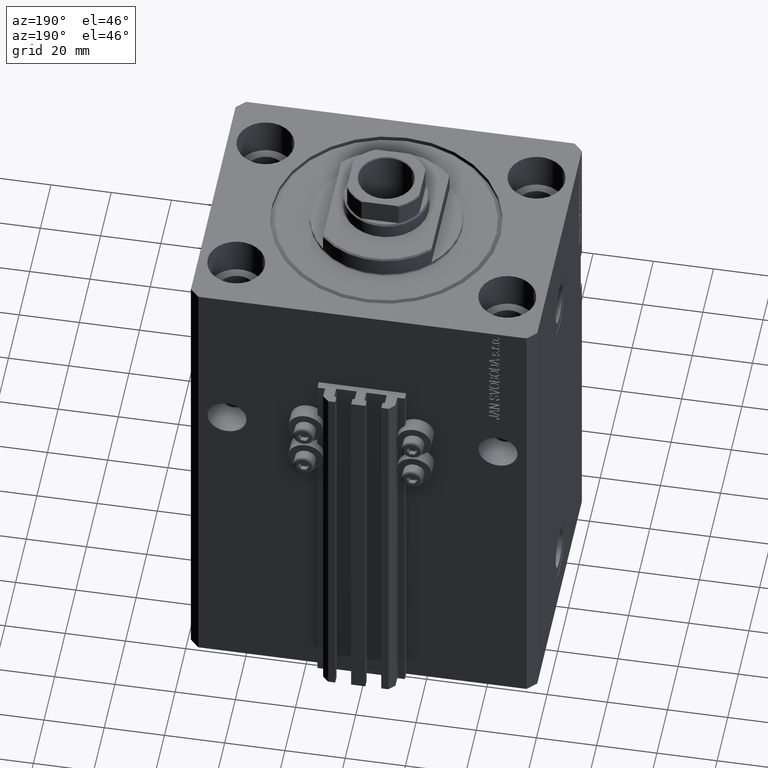
[diagram: clean part render]
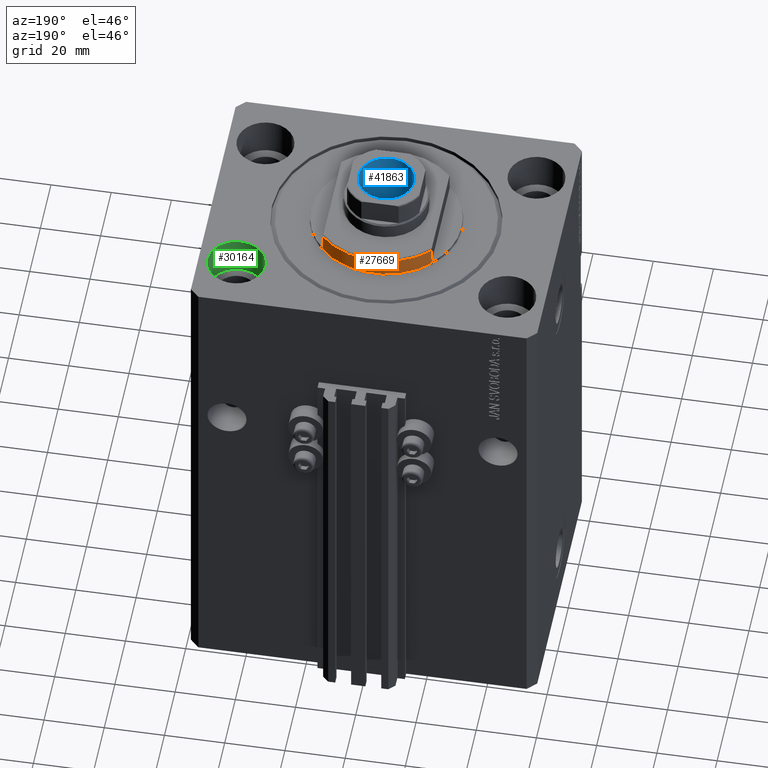
[diagram: same view with three faces highlighted in distinct colors, each labeled with its STEP entity id]
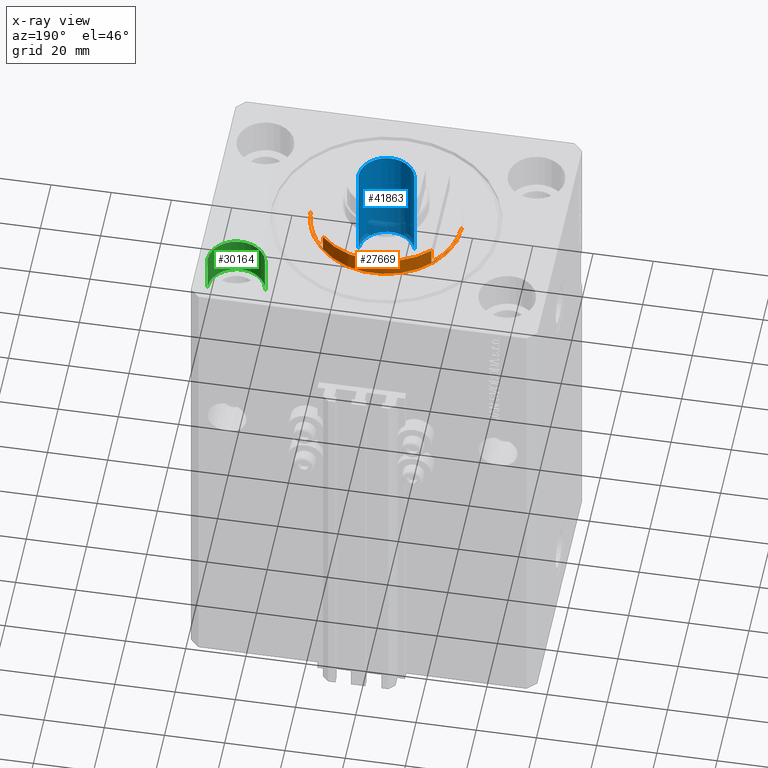
[diagram: x-ray of the same camera — body ghosted, the three highlighted faces saturated]
A machine part, auxiliary view with three faces highlighted in distinct colors.
The next image is the same camera in x-ray (body ghosted, the three faces saturated) — at least one of them is partly hidden behind the body in this view.
Their STEP definitions:

[orange] entity #27669 — the highlighted cylindrical surface (partial cylindrical patch) has radius 25 mm, axis along (0, 0, -1).
#2133 = DIRECTION ( 'NONE',  ( 0.000000000000000000, 0.000000000000000000, 1.000000000000000000 ) ) ;
#2218 = VERTEX_POINT ( 'NONE', #41506 ) ;
#2502 = LINE ( 'NONE', #2747, #20723 ) ;
#2574 = DIRECTION ( 'NONE',  ( -1.000000000000000000, 0.000000000000000000, 0.000000000000000000 ) ) ;
#2747 = CARTESIAN_POINT ( 'NONE',  ( 18.00000000000000000, 17.34935157289747920, -7.000000000000000000 ) ) ;
#2771 = ORIENTED_EDGE ( 'NONE', *, *, #3198, .T. ) ;
#3198 = EDGE_CURVE ( 'NONE', #12098, #40082, #40776, .T. ) ;
#5124 = CARTESIAN_POINT ( 'NONE',  ( 0.000000000000000000, 0.000000000000000000, -6.499999999999971578 ) ) ;
#5799 = AXIS2_PLACEMENT_3D ( 'NONE', #37212, #21775, #6624 ) ;
#6549 = CARTESIAN_POINT ( 'NONE',  ( 25.00000000000000000, 0.000000000000000000, -7.000000000000000000 ) ) ;
#6624 = DIRECTION ( 'NONE',  ( -1.000000000000000000, 0.000000000000000000, 0.000000000000000000 ) ) ;
#7531 = EDGE_CURVE ( 'NONE', #7735, #36211, #2502, .T. ) ;
#7546 = VERTEX_POINT ( 'NONE', #32585 ) ;
#7735 = VERTEX_POINT ( 'NONE', #12409 ) ;
#9516 = CARTESIAN_POINT ( 'NONE',  ( -18.00000000000000000, 17.34935157289747920, -1.000000000000000000 ) ) ;
#9783 = DIRECTION ( 'NONE',  ( 1.000000000000000000, 0.000000000000000000, 0.000000000000000000 ) ) ;
#11209 = VERTEX_POINT ( 'NONE', #42398 ) ;
#11849 = EDGE_CURVE ( 'NONE', #36211, #11209, #47102, .T. ) ;
#12098 = VERTEX_POINT ( 'NONE', #20245 ) ;
#12409 = CARTESIAN_POINT ( 'NONE',  ( 18.00000000000000000, 17.34935157289748986, -6.499999999999978684 ) ) ;
#13263 = FACE_OUTER_BOUND ( 'NONE', #23309, .T. ) ;
#13988 = EDGE_CURVE ( 'NONE', #7546, #40082, #25713, .T. ) ;
#14125 = ORIENTED_EDGE ( 'NONE', *, *, #43415, .T. ) ;
#16430 = EDGE_CURVE ( 'NONE', #33506, #2218, #16922, .T. ) ;
#16922 = CIRCLE ( 'NONE', #44768, 25.00000000000000000 ) ;
#19432 = AXIS2_PLACEMENT_3D ( 'NONE', #5124, #2133, #36453 ) ;
#20245 = CARTESIAN_POINT ( 'NONE',  ( -18.00000000000000000, 17.34935157289748986, -6.499999999999978684 ) ) ;
#20723 = VECTOR ( 'NONE', #33084, 1000.000000000000000 ) ;
#21775 = DIRECTION ( 'NONE',  ( 0.000000000000000000, 0.000000000000000000, -1.000000000000000000 ) ) ;
#22496 = ORIENTED_EDGE ( 'NONE', *, *, #11849, .F. ) ;
#22548 = AXIS2_PLACEMENT_3D ( 'NONE', #37145, #33394, #2574 ) ;
#22617 = EDGE_CURVE ( 'NONE', #11209, #2218, #41374, .T. ) ;
#23309 = EDGE_LOOP ( 'NONE', ( #37682, #14125, #28978, #34951, #22496, #31592, #36909, #2771 ) ) ;
#25713 = CIRCLE ( 'NONE', #22548, 25.00000000000000000 ) ;
#27669 = ADVANCED_FACE ( 'NONE', ( #13263 ), #43882, .T. ) ;
#28258 = VECTOR ( 'NONE', #29424, 1000.000000000000000 ) ;
#28432 = CARTESIAN_POINT ( 'NONE',  ( 0.000000000000000000, 0.000000000000000000, -7.000000000000000000 ) ) ;
#28978 = ORIENTED_EDGE ( 'NONE', *, *, #16430, .T. ) ;
#29424 = DIRECTION ( 'NONE',  ( -0.000000000000000000, -0.000000000000000000, 1.000000000000000000 ) ) ;
#31333 = DIRECTION ( 'NONE',  ( 1.000000000000000000, 0.000000000000000000, 0.000000000000000000 ) ) ;
#31592 = ORIENTED_EDGE ( 'NONE', *, *, #7531, .F. ) ;
#31715 = LINE ( 'NONE', #34735, #48928 ) ;
#32546 = CARTESIAN_POINT ( 'NONE',  ( -18.00000000000000000, 17.34935157289747920, -7.000000000000000000 ) ) ;
#32585 = CARTESIAN_POINT ( 'NONE',  ( -25.00000000000000000, 3.061616997868383043E-15, -1.000000000000000000 ) ) ;
#33084 = DIRECTION ( 'NONE',  ( -0.000000000000000000, -0.000000000000000000, 1.000000000000000000 ) ) ;
#33394 = DIRECTION ( 'NONE',  ( 0.000000000000000000, 0.000000000000000000, -1.000000000000000000 ) ) ;
#33506 = VERTEX_POINT ( 'NONE', #42995 ) ;
#34735 = CARTESIAN_POINT ( 'NONE',  ( -25.00000000000000000, 3.061616997868383043E-15, -7.000000000000000000 ) ) ;
#34951 = ORIENTED_EDGE ( 'NONE', *, *, #22617, .F. ) ;
#35418 = DIRECTION ( 'NONE',  ( -0.000000000000000000, -0.000000000000000000, 1.000000000000000000 ) ) ;
#35700 = VECTOR ( 'NONE', #47747, 1000.000000000000000 ) ;
#36211 = VERTEX_POINT ( 'NONE', #37869 ) ;
#36453 = DIRECTION ( 'NONE',  ( -1.000000000000000000, 0.000000000000000000, 0.000000000000000000 ) ) ;
#36909 = ORIENTED_EDGE ( 'NONE', *, *, #40617, .T. ) ;
#36928 = CIRCLE ( 'NONE', #19432, 25.00000000000000000 ) ;
#37145 = CARTESIAN_POINT ( 'NONE',  ( 0.000000000000000000, 0.000000000000000000, -1.000000000000000000 ) ) ;
#37212 = CARTESIAN_POINT ( 'NONE',  ( 0.000000000000000000, 0.000000000000000000, -1.000000000000000000 ) ) ;
#37682 = ORIENTED_EDGE ( 'NONE', *, *, #13988, .F. ) ;
#37869 = CARTESIAN_POINT ( 'NONE',  ( 18.00000000000000000, 17.34935157289747920, -1.000000000000000000 ) ) ;
#39309 = DIRECTION ( 'NONE',  ( -0.000000000000000000, -0.000000000000000000, -1.000000000000000000 ) ) ;
#40043 = CARTESIAN_POINT ( 'NONE',  ( 0.000000000000000000, 0.000000000000000000, -0.4999999999999995559 ) ) ;
#40082 = VERTEX_POINT ( 'NONE', #9516 ) ;
#40617 = EDGE_CURVE ( 'NONE', #7735, #12098, #36928, .T. ) ;
#40776 = LINE ( 'NONE', #32546, #35700 ) ;
#41374 = LINE ( 'NONE', #6549, #28258 ) ;
#41506 = CARTESIAN_POINT ( 'NONE',  ( 25.00000000000000000, 0.000000000000000000, -0.4999999999999995559 ) ) ;
#42398 = CARTESIAN_POINT ( 'NONE',  ( 25.00000000000000000, 0.000000000000000000, -1.000000000000000000 ) ) ;
#42995 = CARTESIAN_POINT ( 'NONE',  ( -25.00000000000000000, 3.061616997868383043E-15, -0.4999999999999995559 ) ) ;
#43181 = DIRECTION ( 'NONE',  ( -0.000000000000000000, -0.000000000000000000, 1.000000000000000000 ) ) ;
#43415 = EDGE_CURVE ( 'NONE', #7546, #33506, #31715, .T. ) ;
#43724 = AXIS2_PLACEMENT_3D ( 'NONE', #28432, #35418, #9783 ) ;
#43882 = CYLINDRICAL_SURFACE ( 'NONE', #43724, 25.00000000000000000 ) ;
#44768 = AXIS2_PLACEMENT_3D ( 'NONE', #40043, #39309, #31333 ) ;
#47102 = CIRCLE ( 'NONE', #5799, 25.00000000000000000 ) ;
#47747 = DIRECTION ( 'NONE',  ( -0.000000000000000000, -0.000000000000000000, 1.000000000000000000 ) ) ;
#48928 = VECTOR ( 'NONE', #43181, 1000.000000000000000 ) ;

[blue] entity #41863 — the highlighted cylindrical surface (edge-blend (fillet) strip) has radius 9.25 mm, axis along (0, 0, 1).
#465 = VECTOR ( 'NONE', #25358, 1000.000000000000000 ) ;
#2195 = AXIS2_PLACEMENT_3D ( 'NONE', #15902, #15668, #45553 ) ;
#2974 = CARTESIAN_POINT ( 'NONE',  ( 9.249999999999996447, 0.000000000000000000, 167.0000000000000000 ) ) ;
#5426 = CARTESIAN_POINT ( 'NONE',  ( -9.249999999999994671, 1.132798289211300909E-15, 132.0000000000000000 ) ) ;
#8384 = ORIENTED_EDGE ( 'NONE', *, *, #29652, .F. ) ;
#9651 = CARTESIAN_POINT ( 'NONE',  ( 9.249999999999994671, 0.000000000000000000, 132.0000000000000000 ) ) ;
#9935 = AXIS2_PLACEMENT_3D ( 'NONE', #10521, #49075, #17717 ) ;
#10521 = CARTESIAN_POINT ( 'NONE',  ( 0.000000000000000000, 0.000000000000000000, 167.0000000000000000 ) ) ;
#10522 = DIRECTION ( 'NONE',  ( -0.000000000000000000, -0.000000000000000000, 1.000000000000000000 ) ) ;
#11334 = ORIENTED_EDGE ( 'NONE', *, *, #46410, .F. ) ;
#11522 = ORIENTED_EDGE ( 'NONE', *, *, #23833, .T. ) ;
#13011 = CARTESIAN_POINT ( 'NONE',  ( -9.249999999999996447, 1.132798289211301304E-15, 167.0000000000000000 ) ) ;
#13930 = EDGE_CURVE ( 'NONE', #19007, #32016, #47109, .T. ) ;
#14729 = FACE_OUTER_BOUND ( 'NONE', #22604, .T. ) ;
#15668 = DIRECTION ( 'NONE',  ( 0.000000000000000000, 0.000000000000000000, 1.000000000000000000 ) ) ;
#15902 = CARTESIAN_POINT ( 'NONE',  ( 0.000000000000000000, 0.000000000000000000, 166.6999999999999886 ) ) ;
#16072 = DIRECTION ( 'NONE',  ( -0.000000000000000000, -0.000000000000000000, 1.000000000000000000 ) ) ;
#17717 = DIRECTION ( 'NONE',  ( 1.000000000000000000, 0.000000000000000000, 0.000000000000000000 ) ) ;
#17931 = CARTESIAN_POINT ( 'NONE',  ( -9.249999999999996447, 1.132798289211301304E-15, 166.6999999999999886 ) ) ;
#18982 = VERTEX_POINT ( 'NONE', #9651 ) ;
#19007 = VERTEX_POINT ( 'NONE', #5426 ) ;
#21456 = CYLINDRICAL_SURFACE ( 'NONE', #9935, 9.249999999999996447 ) ;
#22473 = ORIENTED_EDGE ( 'NONE', *, *, #13930, .T. ) ;
#22604 = EDGE_LOOP ( 'NONE', ( #8384, #22473, #11522, #11334 ) ) ;
#23295 = CARTESIAN_POINT ( 'NONE',  ( 0.000000000000000000, 0.000000000000000000, 132.0000000000000000 ) ) ;
#23614 = CIRCLE ( 'NONE', #2195, 9.249999999999996447 ) ;
#23833 = EDGE_CURVE ( 'NONE', #32016, #31573, #23614, .T. ) ;
#25358 = DIRECTION ( 'NONE',  ( -0.000000000000000000, -0.000000000000000000, 1.000000000000000000 ) ) ;
#29652 = EDGE_CURVE ( 'NONE', #19007, #18982, #45397, .T. ) ;
#31573 = VERTEX_POINT ( 'NONE', #37527 ) ;
#32016 = VERTEX_POINT ( 'NONE', #17931 ) ;
#33557 = LINE ( 'NONE', #2974, #465 ) ;
#36652 = AXIS2_PLACEMENT_3D ( 'NONE', #23295, #16072, #38498 ) ;
#37527 = CARTESIAN_POINT ( 'NONE',  ( 9.249999999999996447, 0.000000000000000000, 166.6999999999999886 ) ) ;
#38498 = DIRECTION ( 'NONE',  ( 1.000000000000000000, 0.000000000000000000, 0.000000000000000000 ) ) ;
#41863 = ADVANCED_FACE ( 'NONE', ( #14729 ), #21456, .F. ) ;
#45397 = CIRCLE ( 'NONE', #36652, 9.249999999999994671 ) ;
#45553 = DIRECTION ( 'NONE',  ( 1.000000000000000000, 0.000000000000000000, 0.000000000000000000 ) ) ;
#46410 = EDGE_CURVE ( 'NONE', #18982, #31573, #33557, .T. ) ;
#47109 = LINE ( 'NONE', #13011, #47170 ) ;
#47170 = VECTOR ( 'NONE', #10522, 1000.000000000000000 ) ;
#49075 = DIRECTION ( 'NONE',  ( -0.000000000000000000, -0.000000000000000000, 1.000000000000000000 ) ) ;

[green] entity #30164 — the highlighted cylindrical surface (edge-blend (fillet) strip) has radius 9.5 mm, axis along (0, 0, 1).
#347 = ORIENTED_EDGE ( 'NONE', *, *, #6184, .F. ) ;
#1648 = ORIENTED_EDGE ( 'NONE', *, *, #13707, .F. ) ;
#3500 = ORIENTED_EDGE ( 'NONE', *, *, #6903, .T. ) ;
#4283 = EDGE_CURVE ( 'NONE', #31023, #21411, #28277, .T. ) ;
#4300 = FACE_OUTER_BOUND ( 'NONE', #5966, .T. ) ;
#5966 = EDGE_LOOP ( 'NONE', ( #347, #30416, #3500, #1648 ) ) ;
#6184 = EDGE_CURVE ( 'NONE', #31023, #17958, #17499, .T. ) ;
#6903 = EDGE_CURVE ( 'NONE', #21411, #8321, #12775, .T. ) ;
#8004 = AXIS2_PLACEMENT_3D ( 'NONE', #11540, #30440, #11781 ) ;
#8321 = VERTEX_POINT ( 'NONE', #46806 ) ;
#8799 = AXIS2_PLACEMENT_3D ( 'NONE', #13312, #47160, #36210 ) ;
#9124 = CARTESIAN_POINT ( 'NONE',  ( 35.50000000000000000, 27.50000000000001776, -13.00000000000000000 ) ) ;
#9849 = VECTOR ( 'NONE', #11414, 1000.000000000000000 ) ;
#11414 = DIRECTION ( 'NONE',  ( -0.000000000000000000, -0.000000000000000000, 1.000000000000000000 ) ) ;
#11540 = CARTESIAN_POINT ( 'NONE',  ( 45.00000000000000000, 27.50000000000001776, -13.00000000000000000 ) ) ;
#11756 = DIRECTION ( 'NONE',  ( 1.000000000000000000, 0.000000000000000000, 0.000000000000000000 ) ) ;
#11781 = DIRECTION ( 'NONE',  ( 1.000000000000000000, 0.000000000000000000, 0.000000000000000000 ) ) ;
#12775 = CIRCLE ( 'NONE', #8799, 9.500000000000001776 ) ;
#13312 = CARTESIAN_POINT ( 'NONE',  ( 45.00000000000000000, 27.50000000000001776, 0.000000000000000000 ) ) ;
#13342 = DIRECTION ( 'NONE',  ( -0.000000000000000000, -0.000000000000000000, 1.000000000000000000 ) ) ;
#13707 = EDGE_CURVE ( 'NONE', #17958, #8321, #49225, .T. ) ;
#14280 = VECTOR ( 'NONE', #13342, 1000.000000000000000 ) ;
#15379 = CARTESIAN_POINT ( 'NONE',  ( 54.50000000000000000, 27.50000000000001776, -13.00000000000000000 ) ) ;
#17499 = CIRCLE ( 'NONE', #8004, 9.500000000000001776 ) ;
#17958 = VERTEX_POINT ( 'NONE', #37553 ) ;
#19660 = CARTESIAN_POINT ( 'NONE',  ( 35.50000000000000000, 27.50000000000001776, 0.000000000000000000 ) ) ;
#21411 = VERTEX_POINT ( 'NONE', #19660 ) ;
#28277 = LINE ( 'NONE', #9124, #14280 ) ;
#29532 = AXIS2_PLACEMENT_3D ( 'NONE', #46344, #42609, #11756 ) ;
#30164 = ADVANCED_FACE ( 'NONE', ( #4300 ), #34642, .F. ) ;
#30416 = ORIENTED_EDGE ( 'NONE', *, *, #4283, .T. ) ;
#30440 = DIRECTION ( 'NONE',  ( 0.000000000000000000, 0.000000000000000000, 1.000000000000000000 ) ) ;
#31023 = VERTEX_POINT ( 'NONE', #39904 ) ;
#34642 = CYLINDRICAL_SURFACE ( 'NONE', #29532, 9.500000000000001776 ) ;
#36210 = DIRECTION ( 'NONE',  ( 1.000000000000000000, 0.000000000000000000, 0.000000000000000000 ) ) ;
#37553 = CARTESIAN_POINT ( 'NONE',  ( 54.50000000000000000, 27.50000000000001776, -13.00000000000000000 ) ) ;
#39904 = CARTESIAN_POINT ( 'NONE',  ( 35.50000000000000000, 27.50000000000001776, -13.00000000000000000 ) ) ;
#42609 = DIRECTION ( 'NONE',  ( -0.000000000000000000, -0.000000000000000000, 1.000000000000000000 ) ) ;
#46344 = CARTESIAN_POINT ( 'NONE',  ( 45.00000000000000000, 27.50000000000001776, -13.00000000000000000 ) ) ;
#46806 = CARTESIAN_POINT ( 'NONE',  ( 54.50000000000000000, 27.50000000000001776, 0.000000000000000000 ) ) ;
#47160 = DIRECTION ( 'NONE',  ( 0.000000000000000000, 0.000000000000000000, 1.000000000000000000 ) ) ;
#49225 = LINE ( 'NONE', #15379, #9849 ) ;